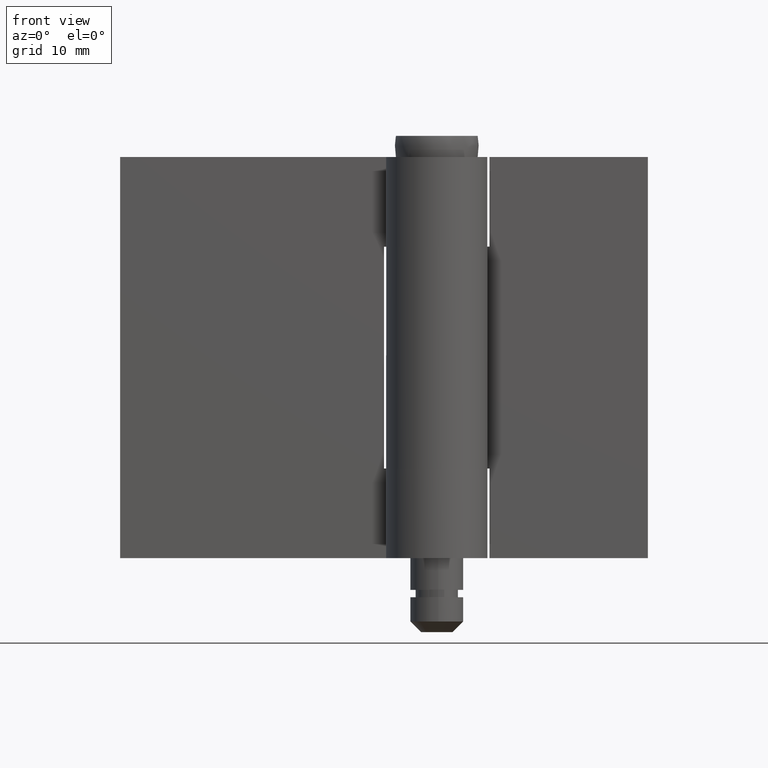
[diagram: clean part render]
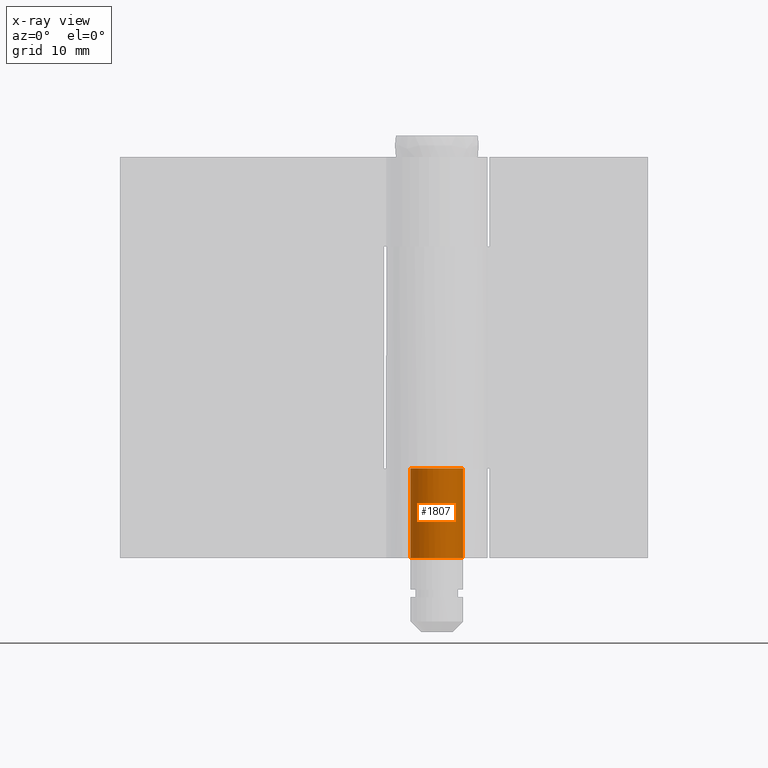
[diagram: x-ray — body ghosted, one internal face saturated and labeled with its STEP entity id]
A machine part, front view, then the same camera in x-ray: the body is ghosted and one INTERNAL B-rep face — a face not visible from any outside direction — is saturated and labeled: STEP entity #1807.
In plain terms, the highlighted face is a freeform B-spline surface patch.
Its self-contained STEP definition (entity closure, byte-faithful):
#1446=CARTESIAN_POINT('',(1.530758E-016,2.500000000000000,8.500000000000000));
#1447=VERTEX_POINT('',#1446);
#1453=CARTESIAN_POINT('',(-2.149818053913065,1.276041666666666,8.500000000000000));
#1454=VERTEX_POINT('',#1453);
#1455=CARTESIAN_POINT('',(-2.149818053913065,1.276041666666667,8.500000000000000));
#1456=CARTESIAN_POINT('',(-3.132021716745239,-0.378731231535049,8.500000000000000));
#1457=CARTESIAN_POINT('',(-1.783697646429027,-1.751691384383547,8.500000000000000));
#1458=CARTESIAN_POINT('',(-0.435373576112815,-3.124651537232047,8.500000000000000));
#1459=CARTESIAN_POINT('',(1.236910634066450,-2.172568084855647,8.500000000000000));
#1460=CARTESIAN_POINT('',(2.909194844245716,-1.220484632479246,8.500000000000000));
#1461=CARTESIAN_POINT('',(2.416756112244170,0.639757683760378,8.500000000000000));
#1462=CARTESIAN_POINT('',(1.924317380242627,2.500000000000000,8.500000000000000));
#1463=CARTESIAN_POINT('',(0.0,2.500000000000000,8.500000000000000));
#1471=(BOUNDED_CURVE()B_SPLINE_CURVE(2,(#1455,#1456,#1457,#1458,#1459,#1460,#1461,#1462,#1463),.UNSPECIFIED.,.F.,.U.)B_SPLINE_CURVE_WITH_KNOTS((3,2,2,2,3),(0.0,0.250000000000000,0.500000000000000,0.750000000000000,1.0),.UNSPECIFIED.)CURVE()GEOMETRIC_REPRESENTATION_ITEM()RATIONAL_B_SPLINE_CURVE((1.0,0.792433932105431,1.0,0.792433932105431,1.0,0.792433932105431,1.0,0.792433932105431,1.0))REPRESENTATION_ITEM(''));
#1472=EDGE_CURVE('',#1454,#1447,#1471,.T.);
#1620=CARTESIAN_POINT('',(1.530758E-016,2.500000000000000,0.0));
#1621=VERTEX_POINT('',#1620);
#1664=CARTESIAN_POINT('',(-2.149818053913065,1.276041666666666,0.0));
#1665=VERTEX_POINT('',#1664);
#1671=CARTESIAN_POINT('',(0.0,2.500000000000000,0.0));
#1672=CARTESIAN_POINT('',(1.924317380242626,2.500000000000000,0.0));
#1673=CARTESIAN_POINT('',(2.416756112244170,0.639757683760377,0.0));
#1674=CARTESIAN_POINT('',(2.909194844245715,-1.220484632479246,0.0));
#1675=CARTESIAN_POINT('',(1.236910634066451,-2.172568084855646,0.0));
#1676=CARTESIAN_POINT('',(-0.435373576112813,-3.124651537232046,0.0));
#1677=CARTESIAN_POINT('',(-1.783697646429026,-1.751691384383548,0.0));
#1678=CARTESIAN_POINT('',(-3.132021716745237,-0.378731231535052,0.0));
#1679=CARTESIAN_POINT('',(-2.149818053913066,1.276041666666664,0.0));
#1687=(BOUNDED_CURVE()B_SPLINE_CURVE(2,(#1671,#1672,#1673,#1674,#1675,#1676,#1677,#1678,#1679),.UNSPECIFIED.,.F.,.U.)B_SPLINE_CURVE_WITH_KNOTS((3,2,2,2,3),(0.0,0.250000000000000,0.500000000000000,0.750000000000000,1.0),.UNSPECIFIED.)CURVE()GEOMETRIC_REPRESENTATION_ITEM()RATIONAL_B_SPLINE_CURVE((1.0,0.792433932105431,1.0,0.792433932105431,1.0,0.792433932105431,1.0,0.792433932105431,1.0))REPRESENTATION_ITEM(''));
#1688=EDGE_CURVE('',#1621,#1665,#1687,.T.);
#1771=CARTESIAN_POINT('',(-2.108478614532213,1.343249020867059,8.712500000000002));
#1772=CARTESIAN_POINT('',(-2.108478614532213,1.343249020867059,-0.217812499999999));
#1773=CARTESIAN_POINT('',(-3.777154559895411,-1.276047543452447,8.712500000000002));
#1774=CARTESIAN_POINT('',(-3.777154559895411,-1.276047543452447,-0.217812499999999));
#1775=CARTESIAN_POINT('',(-0.861880368713485,-2.346734375685988,8.712500000000002));
#1776=CARTESIAN_POINT('',(-0.861880368713485,-2.346734375685988,-0.217812499999999));
#1777=CARTESIAN_POINT('',(2.053393822468443,-3.417421207919527,8.712500000000002));
#1778=CARTESIAN_POINT('',(2.053393822468443,-3.417421207919527,-0.217812499999999));
#1779=CARTESIAN_POINT('',(2.476671791725639,-0.340729857908735,8.712500000000002));
#1780=CARTESIAN_POINT('',(2.476671791725639,-0.340729857908735,-0.217812499999999));
#1781=CARTESIAN_POINT('',(2.899949760982835,2.735961492102059,8.712500000000002));
#1782=CARTESIAN_POINT('',(2.899949760982835,2.735961492102059,-0.217812499999999));
#1783=CARTESIAN_POINT('',(-0.196147739319614,2.492293334332819,8.712500000000002));
#1784=CARTESIAN_POINT('',(-0.196147739319614,2.492293334332819,-0.217812499999999));
#1792=(BOUNDED_SURFACE()B_SPLINE_SURFACE(1,2,((#1771,#1773,#1775,#1777,#1779,#1781,#1783),(#1772,#1774,#1776,#1778,#1780,#1782,#1784)),.UNSPECIFIED.,.F.,.F.,.U.)B_SPLINE_SURFACE_WITH_KNOTS((2,2),(3,2,2,3),(0.0,8.930312500000001),(0.0,4.787621079748533,9.575242159497066,14.362863239245600),.UNSPECIFIED.)GEOMETRIC_REPRESENTATION_ITEM()RATIONAL_B_SPLINE_SURFACE(((1.0,0.627057105746662,1.0,0.627057105746662,1.0,0.627057105746662,1.0),(1.0,0.627057105746662,1.0,0.627057105746662,1.0,0.627057105746662,1.0)))REPRESENTATION_ITEM('')SURFACE());
#1793=CARTESIAN_POINT('',(-2.149818053913065,1.276041666666666,8.500000000000000));
#1794=CARTESIAN_POINT('',(-2.149818053913065,1.276041666666666,0.0));
#1795=QUASI_UNIFORM_CURVE('',1,(#1793,#1794),.UNSPECIFIED.,.F.,.U.);
#1796=EDGE_CURVE('',#1454,#1665,#1795,.T.);
#1797=ORIENTED_EDGE('',*,*,#1796,.F.);
#1798=ORIENTED_EDGE('',*,*,#1472,.T.);
#1799=CARTESIAN_POINT('',(1.530758E-016,2.500000000000000,8.500000000000000));
#1800=CARTESIAN_POINT('',(1.530758E-016,2.500000000000000,0.0));
#1801=QUASI_UNIFORM_CURVE('',1,(#1799,#1800),.UNSPECIFIED.,.F.,.U.);
#1802=EDGE_CURVE('',#1447,#1621,#1801,.T.);
#1803=ORIENTED_EDGE('',*,*,#1802,.T.);
#1804=ORIENTED_EDGE('',*,*,#1688,.T.);
#1805=EDGE_LOOP('',(#1797,#1798,#1803,#1804));
#1806=FACE_OUTER_BOUND('',#1805,.T.);
#1807=ADVANCED_FACE('',(#1806),#1792,.F.);